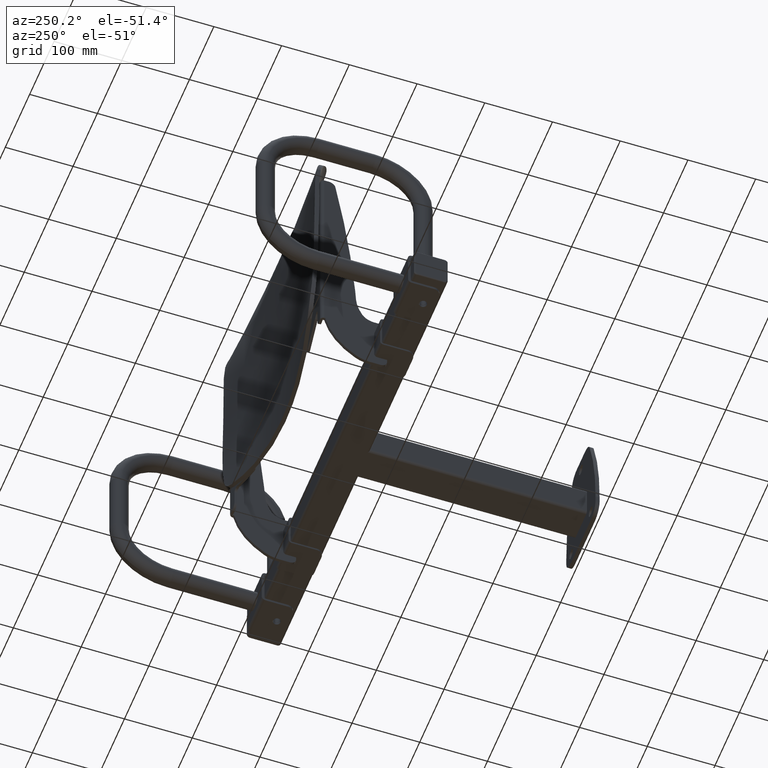
[diagram: clean part render]
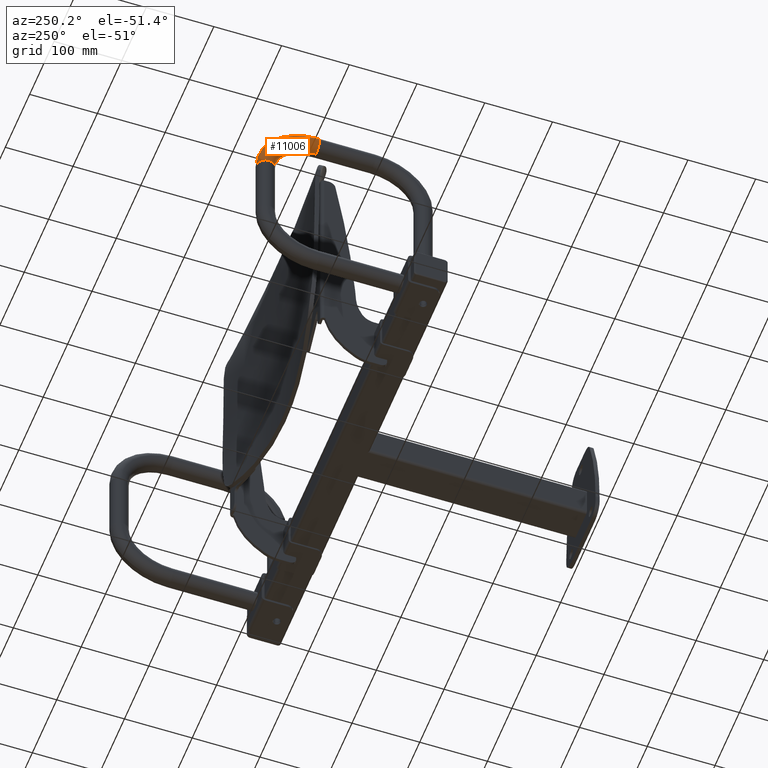
[diagram: same view with one face highlighted and labeled with its STEP entity id]
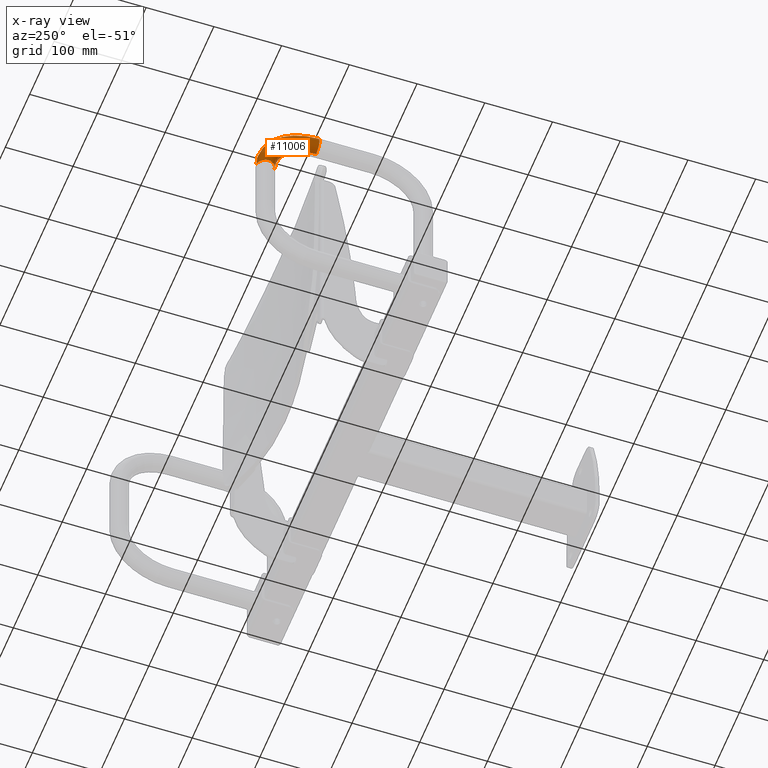
[diagram: x-ray of the same camera — body ghosted, the highlighted face saturated]
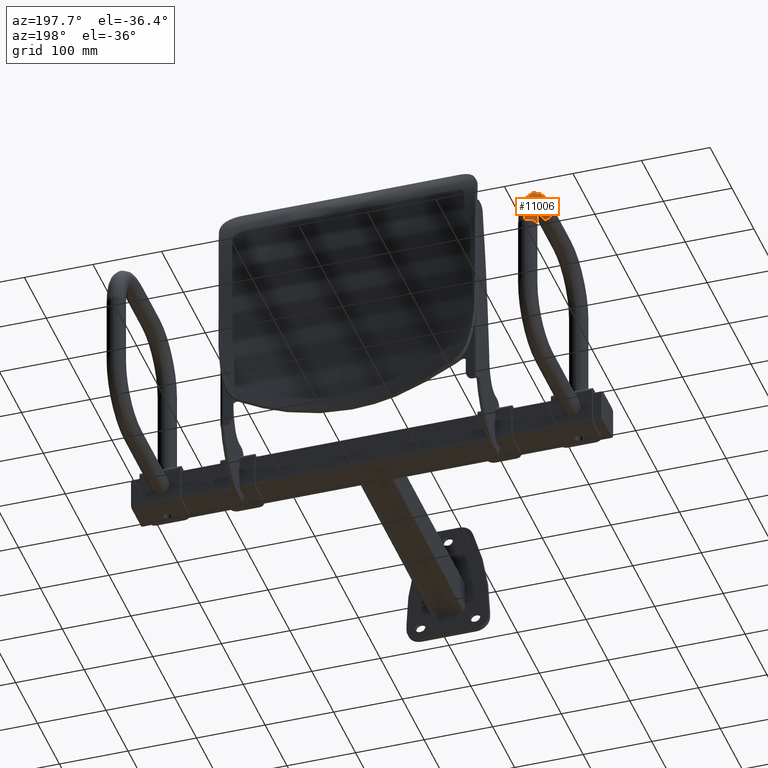
[diagram: same view with one face highlighted and labeled with its STEP entity id]
A machine part, auxiliary view. The second image highlights one B-rep face of the part: STEP entity #11006.
The next image is the same camera in x-ray: the body ghosted, the highlighted face saturated — about 0% of this face is hidden behind the body in this view.
A second angle (auxiliary view) of the same face is appended — the face is thin or edge-on in the first view.
In plain terms, the highlighted toroidal blend (fillet) surface has major radius 75 mm and minor (blend) radius 13.5 mm.
Its self-contained STEP definition (entity closure, byte-faithful):
#500 = CARTESIAN_POINT ( 'NONE',  ( 0.0000000000000000000, 128.9999999999994900, 250.0000000000000000 ) ) ;
#501 = DIRECTION ( 'NONE',  ( 0.0000000000000000000, -1.000000000000000000, -2.741106633078914700E-014 ) ) ;
#502 = DIRECTION ( 'NONE',  ( 0.0000000000000000000, 2.672759133356855700E-014, -1.000000000000000000 ) ) ;
#507 = AXIS2_PLACEMENT_3D ( 'NONE', #2737, #2736, #2739 ) ;
#674 = CIRCLE ( 'NONE', #4230, 13.50000000000001200 ) ;
#675 = CIRCLE ( 'NONE', #4231, 13.50000000000001200 ) ;
#700 = CIRCLE ( 'NONE', #4241, 88.49999999999998600 ) ;
#702 = CIRCLE ( 'NONE', #4243, 61.49999999999998600 ) ;
#1341 = CARTESIAN_POINT ( 'NONE',  ( 0.0000000000000000000, 204.0000000000000000, 174.9999999999994900 ) ) ;
#1342 = DIRECTION ( 'NONE',  ( 0.0000000000000000000, -1.370553316539457400E-014, 1.000000000000000000 ) ) ;
#1343 = DIRECTION ( 'NONE',  ( 0.0000000000000000000, -1.000000000000000000, -1.439177994884460800E-014 ) ) ;
#1385 = CARTESIAN_POINT ( 'NONE',  ( 0.0000000000000000000, 129.0000000000000000, 175.0000000000000000 ) ) ;
#1386 = DIRECTION ( 'NONE',  ( 1.000000000000000000, 0.0000000000000000000, 0.0000000000000000000 ) ) ;
#1387 = DIRECTION ( 'NONE',  ( 0.0000000000000000000, 0.0000000000000000000, -1.000000000000000000 ) ) ;
#2736 = DIRECTION ( 'NONE',  ( 1.000000000000000000, 0.0000000000000000000, 0.0000000000000000000 ) ) ;
#2737 = CARTESIAN_POINT ( 'NONE',  ( 0.0000000000000000000, 129.0000000000000000, 175.0000000000000000 ) ) ;
#2739 = DIRECTION ( 'NONE',  ( 0.0000000000000000000, 0.0000000000000000000, -1.000000000000000000 ) ) ;
#4230 = AXIS2_PLACEMENT_3D ( 'NONE', #500, #501, #502 ) ;
#4231 = AXIS2_PLACEMENT_3D ( 'NONE', #1341, #1342, #1343 ) ;
#4241 = AXIS2_PLACEMENT_3D ( 'NONE', #1385, #1386, #1387 ) ;
#4243 = AXIS2_PLACEMENT_3D ( 'NONE', #13364, #13365, #13366 ) ;
#4335 = EDGE_CURVE ( 'NONE', #9480, #9479, #674, .T. ) ;
#4336 = EDGE_CURVE ( 'NONE', #9500, #9720, #675, .T. ) ;
#4354 = EDGE_CURVE ( 'NONE', #9500, #9480, #700, .T. ) ;
#4356 = EDGE_CURVE ( 'NONE', #9720, #9479, #702, .T. ) ;
#5602 = ORIENTED_EDGE ( 'NONE', *, *, #4335, .F. ) ;
#5603 = ORIENTED_EDGE ( 'NONE', *, *, #4356, .T. ) ;
#5604 = ORIENTED_EDGE ( 'NONE', *, *, #4336, .T. ) ;
#5605 = ORIENTED_EDGE ( 'NONE', *, *, #4354, .F. ) ;
#9479 = VERTEX_POINT ( 'NONE', #9662 ) ;
#9480 = VERTEX_POINT ( 'NONE', #9671 ) ;
#9500 = VERTEX_POINT ( 'NONE', #9691 ) ;
#9662 = CARTESIAN_POINT ( 'NONE',  ( 0.0000000000000000000, 128.9999999999998300, 236.5000000000000000 ) ) ;
#9671 = CARTESIAN_POINT ( 'NONE',  ( 1.653273178848932000E-015, 128.9999999999991200, 263.5000000000000000 ) ) ;
#9691 = CARTESIAN_POINT ( 'NONE',  ( 1.653273178848925300E-015, 217.5000000000000000, 174.9999999999996900 ) ) ;
#9697 = CARTESIAN_POINT ( 'NONE',  ( 0.0000000000000000000, 190.4999999999999700, 174.9999999999992900 ) ) ;
#9720 = VERTEX_POINT ( 'NONE', #9697 ) ;
#11006 = ADVANCED_FACE ( 'NONE', ( #11182 ), #11191, .T. ) ;
#11182 = FACE_OUTER_BOUND ( 'NONE', #14017, .T. ) ;
#11191 = TOROIDAL_SURFACE ( 'NONE', #507, 74.99999999999998600, 13.50000000000000000 ) ;
#13364 = CARTESIAN_POINT ( 'NONE',  ( -1.653273178848926900E-015, 129.0000000000000000, 175.0000000000000000 ) ) ;
#13365 = DIRECTION ( 'NONE',  ( 1.000000000000000000, 0.0000000000000000000, 0.0000000000000000000 ) ) ;
#13366 = DIRECTION ( 'NONE',  ( 0.0000000000000000000, 0.0000000000000000000, -1.000000000000000000 ) ) ;
#14017 = EDGE_LOOP ( 'NONE', ( #5605, #5604, #5603, #5602 ) ) ;